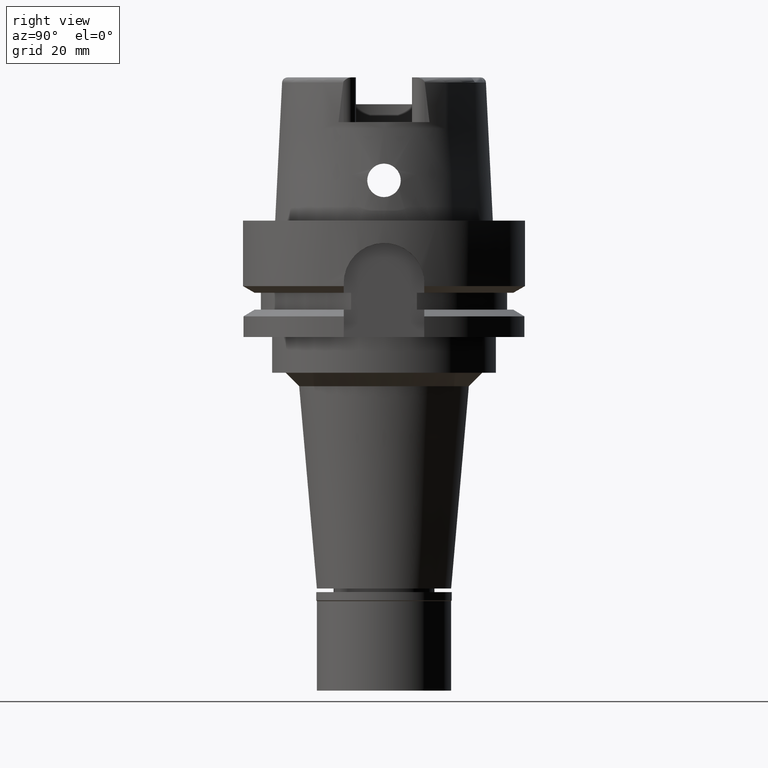
[diagram: clean part render]
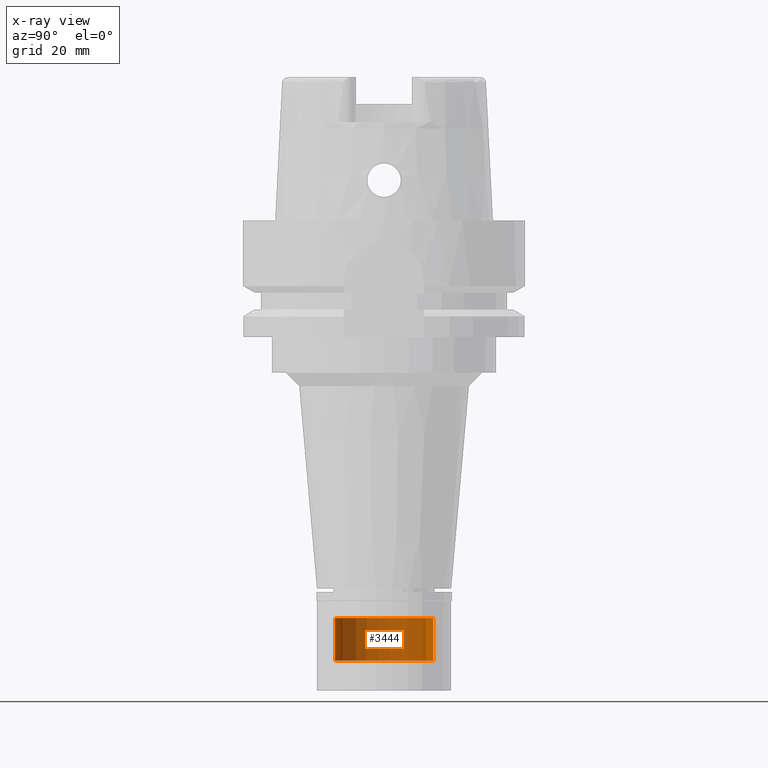
[diagram: x-ray — body ghosted, one internal face saturated and labeled with its STEP entity id]
A machine part, right view, then the same camera in x-ray: the body is ghosted and one INTERNAL B-rep face — a face not visible from any outside direction — is saturated and labeled: STEP entity #3444.
In plain terms, the highlighted cylindrical surface (partial cylindrical patch) has radius 11 mm, axis along (0, 0, 1).
Its self-contained STEP definition (entity closure, byte-faithful):
#408 = VECTOR ( 'NONE', #4917, 1000.000000000000000 ) ;
#431 = VERTEX_POINT ( 'NONE', #5442 ) ;
#473 = VERTEX_POINT ( 'NONE', #1192 ) ;
#527 = EDGE_LOOP ( 'NONE', ( #4760, #4026, #2186, #4579 ) ) ;
#687 = CARTESIAN_POINT ( 'NONE',  ( 0.0000000000000000000, -11.00000000000000000, -88.79999999999999716 ) ) ;
#771 = EDGE_CURVE ( 'NONE', #2223, #2344, #3135, .T. ) ;
#852 = AXIS2_PLACEMENT_3D ( 'NONE', #2855, #5017, #2105 ) ;
#982 = DIRECTION ( 'NONE',  ( 0.0000000000000000000, 0.0000000000000000000, 1.000000000000000000 ) ) ;
#1192 = CARTESIAN_POINT ( 'NONE',  ( 0.0000000000000000000, 11.00000000000000000, -88.79999999999999716 ) ) ;
#1343 = DIRECTION ( 'NONE',  ( 0.0000000000000000000, 1.000000000000000000, 0.0000000000000000000 ) ) ;
#1447 = DIRECTION ( 'NONE',  ( 0.0000000000000000000, 0.0000000000000000000, -1.000000000000000000 ) ) ;
#1472 = CIRCLE ( 'NONE', #852, 11.00000000000000000 ) ;
#1506 = CARTESIAN_POINT ( 'NONE',  ( 0.0000000000000000000, -11.00000000000000000, -88.79999999999999716 ) ) ;
#1556 = EDGE_CURVE ( 'NONE', #473, #431, #4437, .T. ) ;
#2105 = DIRECTION ( 'NONE',  ( 0.0000000000000000000, -1.000000000000000000, 0.0000000000000000000 ) ) ;
#2139 = DIRECTION ( 'NONE',  ( 0.0000000000000000000, 0.0000000000000000000, 1.000000000000000000 ) ) ;
#2186 = ORIENTED_EDGE ( 'NONE', *, *, #3339, .T. ) ;
#2223 = VERTEX_POINT ( 'NONE', #1506 ) ;
#2230 = FACE_OUTER_BOUND ( 'NONE', #527, .T. ) ;
#2344 = VERTEX_POINT ( 'NONE', #3861 ) ;
#2546 = VECTOR ( 'NONE', #1447, 1000.000000000000000 ) ;
#2804 = CIRCLE ( 'NONE', #3790, 11.00000000000000000 ) ;
#2855 = CARTESIAN_POINT ( 'NONE',  ( 0.0000000000000000000, 0.0000000000000000000, -88.79999999999999716 ) ) ;
#2882 = EDGE_CURVE ( 'NONE', #431, #2344, #2804, .T. ) ;
#2904 = AXIS2_PLACEMENT_3D ( 'NONE', #5100, #982, #1343 ) ;
#2916 = CARTESIAN_POINT ( 'NONE',  ( 0.0000000000000000000, 0.0000000000000000000, -98.29999999999999716 ) ) ;
#2994 = DIRECTION ( 'NONE',  ( 0.0000000000000000000, 1.000000000000000000, 0.0000000000000000000 ) ) ;
#3135 = LINE ( 'NONE', #687, #408 ) ;
#3339 = EDGE_CURVE ( 'NONE', #2223, #473, #1472, .T. ) ;
#3444 = ADVANCED_FACE ( 'NONE', ( #2230 ), #5128, .T. ) ;
#3790 = AXIS2_PLACEMENT_3D ( 'NONE', #2916, #2139, #2994 ) ;
#3861 = CARTESIAN_POINT ( 'NONE',  ( 0.0000000000000000000, -11.00000000000000000, -98.29999999999999716 ) ) ;
#4026 = ORIENTED_EDGE ( 'NONE', *, *, #771, .F. ) ;
#4437 = LINE ( 'NONE', #5261, #2546 ) ;
#4579 = ORIENTED_EDGE ( 'NONE', *, *, #1556, .T. ) ;
#4760 = ORIENTED_EDGE ( 'NONE', *, *, #2882, .T. ) ;
#4917 = DIRECTION ( 'NONE',  ( 0.0000000000000000000, 0.0000000000000000000, -1.000000000000000000 ) ) ;
#5017 = DIRECTION ( 'NONE',  ( 0.0000000000000000000, 0.0000000000000000000, -1.000000000000000000 ) ) ;
#5100 = CARTESIAN_POINT ( 'NONE',  ( 0.0000000000000000000, 0.0000000000000000000, 0.0000000000000000000 ) ) ;
#5128 = CYLINDRICAL_SURFACE ( 'NONE', #2904, 11.00000000000000000 ) ;
#5261 = CARTESIAN_POINT ( 'NONE',  ( 0.0000000000000000000, 11.00000000000000000, -88.79999999999999716 ) ) ;
#5442 = CARTESIAN_POINT ( 'NONE',  ( 0.0000000000000000000, 11.00000000000000000, -98.29999999999999716 ) ) ;